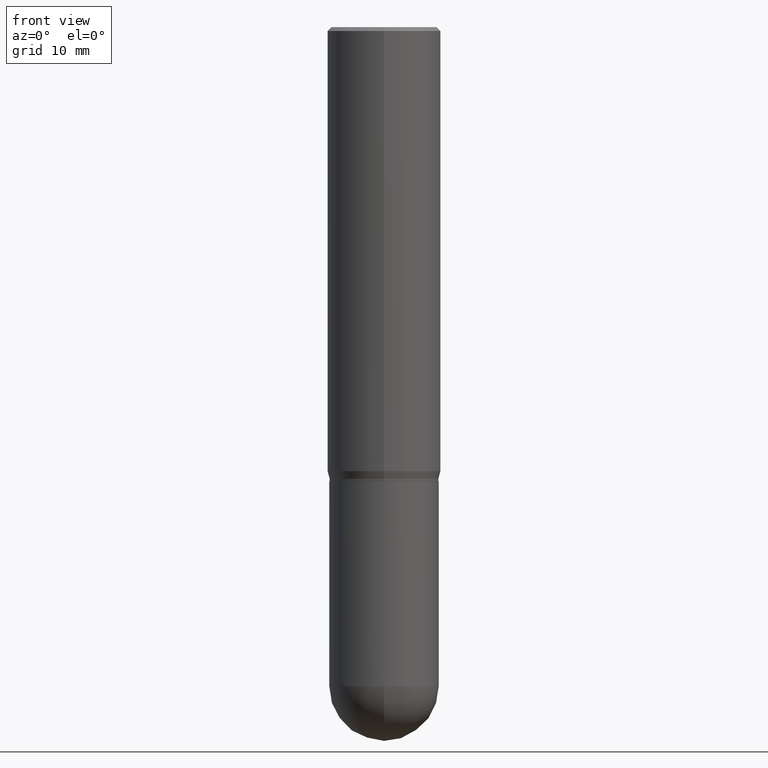
[diagram: clean part render]
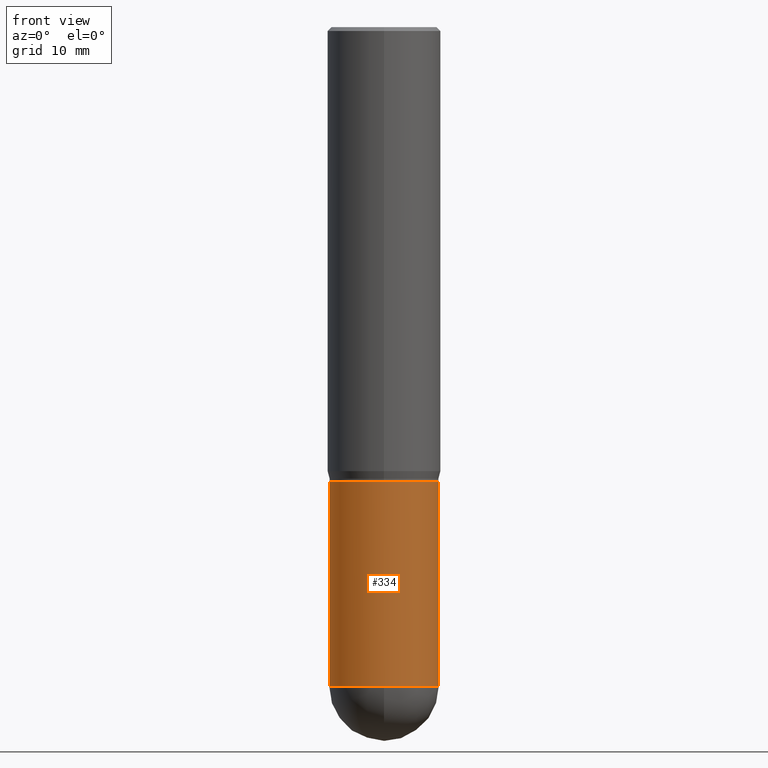
[diagram: same view with one face highlighted and labeled with its STEP entity id]
A machine part, front view. The second image highlights one B-rep face of the part: STEP entity #334.
In plain terms, the highlighted cylindrical surface (partial cylindrical patch) has radius 5.3581 mm, axis along (-0, 0, 1).
Its self-contained STEP definition (entity closure, byte-faithful):
#7 = EDGE_CURVE ( 'NONE', #53, #145, #33, .T. ) ;
#17 = CYLINDRICAL_SURFACE ( 'NONE', #418, 0.2109500000000000541 ) ;
#33 = CIRCLE ( 'NONE', #435, 0.2109500000000000541 ) ;
#35 = ORIENTED_EDGE ( 'NONE', *, *, #511, .T. ) ;
#53 = VERTEX_POINT ( 'NONE', #434 ) ;
#94 = ORIENTED_EDGE ( 'NONE', *, *, #7, .T. ) ;
#101 = VECTOR ( 'NONE', #270, 39.37007874015748143 ) ;
#106 = CARTESIAN_POINT ( 'NONE',  ( 4.279570410823988484E-29, -6.110092342975504671E-15, -1.750000000000000000 ) ) ;
#114 = CARTESIAN_POINT ( 'NONE',  ( 0.2109500000000000541, -8.960624995040515044E-15, -2.539050000000000473 ) ) ;
#123 = EDGE_CURVE ( 'NONE', #225, #53, #477, .T. ) ;
#128 = DIRECTION ( 'NONE',  ( -2.445468806185136597E-29, 3.491481338843145583E-15, 1.000000000000000000 ) ) ;
#145 = VERTEX_POINT ( 'NONE', #114 ) ;
#174 = VERTEX_POINT ( 'NONE', #500 ) ;
#179 = DIRECTION ( 'NONE',  ( 1.000000000000000000, -6.982962677686265133E-15, 0.000000000000000000 ) ) ;
#197 = AXIS2_PLACEMENT_3D ( 'NONE', #106, #261, #421 ) ;
#199 = EDGE_CURVE ( 'NONE', #174, #284, #377, .T. ) ;
#201 = LINE ( 'NONE', #268, #101 ) ;
#206 = AXIS2_PLACEMENT_3D ( 'NONE', #430, #128, #179 ) ;
#220 = EDGE_LOOP ( 'NONE', ( #458, #375, #94, #35, #512 ) ) ;
#225 = VERTEX_POINT ( 'NONE', #234 ) ;
#231 = CARTESIAN_POINT ( 'NONE',  ( 0.2109500000000000541, -1.473055976857918157E-15, 1.028629490854152908E-29 ) ) ;
#234 = CARTESIAN_POINT ( 'NONE',  ( -0.2109500000000000541, -5.988679117096665555E-15, -2.539050000000000473 ) ) ;
#236 = VECTOR ( 'NONE', #394, 39.37007874015748143 ) ;
#259 = DIRECTION ( 'NONE',  ( 1.000000000000000000, -6.982962677686265133E-15, 0.000000000000000000 ) ) ;
#260 = EDGE_CURVE ( 'NONE', #225, #174, #201, .T. ) ;
#261 = DIRECTION ( 'NONE',  ( -2.445468806185136597E-29, 3.491481338843145583E-15, 1.000000000000000000 ) ) ;
#268 = CARTESIAN_POINT ( 'NONE',  ( -0.2109500000000000541, 1.498889901085931727E-15, -1.037649357289272662E-29 ) ) ;
#270 = DIRECTION ( 'NONE',  ( -2.445468806185136877E-29, 3.491481338843145188E-15, 1.000000000000000000 ) ) ;
#284 = VERTEX_POINT ( 'NONE', #364 ) ;
#302 = DIRECTION ( 'NONE',  ( -2.445468806185136597E-29, 3.491481338843145583E-15, 1.000000000000000000 ) ) ;
#325 = FACE_OUTER_BOUND ( 'NONE', #220, .T. ) ;
#334 = ADVANCED_FACE ( 'NONE', ( #325 ), #17, .T. ) ;
#345 = CARTESIAN_POINT ( 'NONE',  ( 6.209167572344372023E-29, -8.865045693389689499E-15, -2.539050000000000473 ) ) ;
#364 = CARTESIAN_POINT ( 'NONE',  ( 0.2109499999999999986, -7.583148319833423025E-15, -1.750000000000000000 ) ) ;
#375 = ORIENTED_EDGE ( 'NONE', *, *, #123, .T. ) ;
#377 = CIRCLE ( 'NONE', #197, 0.2109499999999999986 ) ;
#394 = DIRECTION ( 'NONE',  ( -2.445468806185136877E-29, 3.491481338843145188E-15, 1.000000000000000000 ) ) ;
#405 = DIRECTION ( 'NONE',  ( -2.445468806185136597E-29, 3.491481338843145583E-15, 1.000000000000000000 ) ) ;
#418 = AXIS2_PLACEMENT_3D ( 'NONE', #492, #405, #447 ) ;
#421 = DIRECTION ( 'NONE',  ( 1.000000000000000000, -6.982962677686266711E-15, 0.000000000000000000 ) ) ;
#427 = LINE ( 'NONE', #231, #236 ) ;
#430 = CARTESIAN_POINT ( 'NONE',  ( 6.209167572344372023E-29, -8.865045693389689499E-15, -2.539050000000000473 ) ) ;
#434 = CARTESIAN_POINT ( 'NONE',  ( -1.498889901085869604E-15, -0.2109500000000089637, -2.539049999999999585 ) ) ;
#435 = AXIS2_PLACEMENT_3D ( 'NONE', #345, #302, #259 ) ;
#447 = DIRECTION ( 'NONE',  ( 1.000000000000000000, -6.982962677686265922E-15, 4.876176775795935793E-29 ) ) ;
#458 = ORIENTED_EDGE ( 'NONE', *, *, #260, .F. ) ;
#477 = CIRCLE ( 'NONE', #206, 0.2109500000000000541 ) ;
#492 = CARTESIAN_POINT ( 'NONE',  ( 0.000000000000000000, 0.000000000000000000, 0.000000000000000000 ) ) ;
#500 = CARTESIAN_POINT ( 'NONE',  ( -0.2109499999999999986, -5.988679117096665555E-15, -1.750000000000000000 ) ) ;
#511 = EDGE_CURVE ( 'NONE', #145, #284, #427, .T. ) ;
#512 = ORIENTED_EDGE ( 'NONE', *, *, #199, .F. ) ;